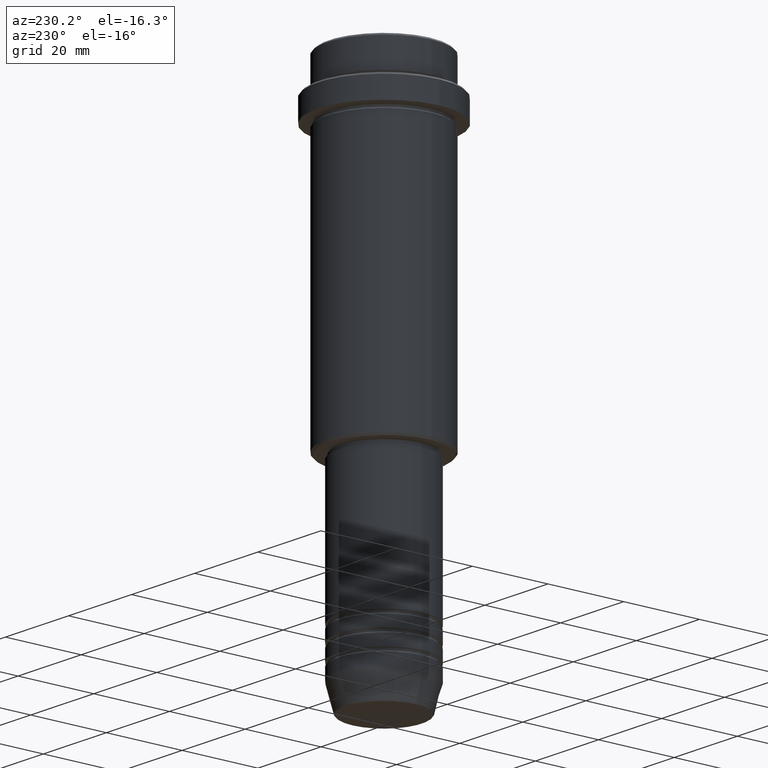
[diagram: clean part render]
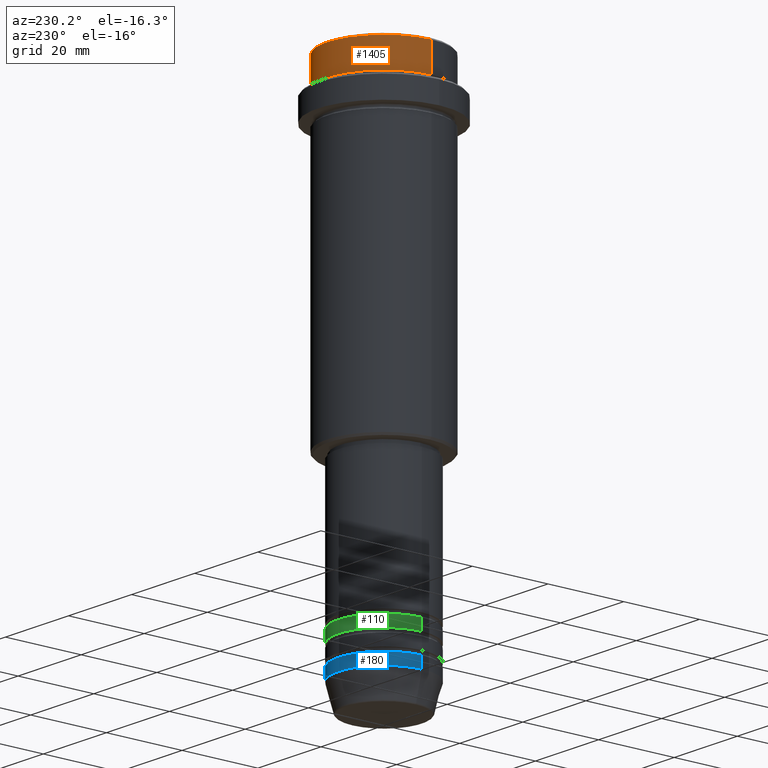
[diagram: same view with three faces highlighted in distinct colors, each labeled with its STEP entity id]
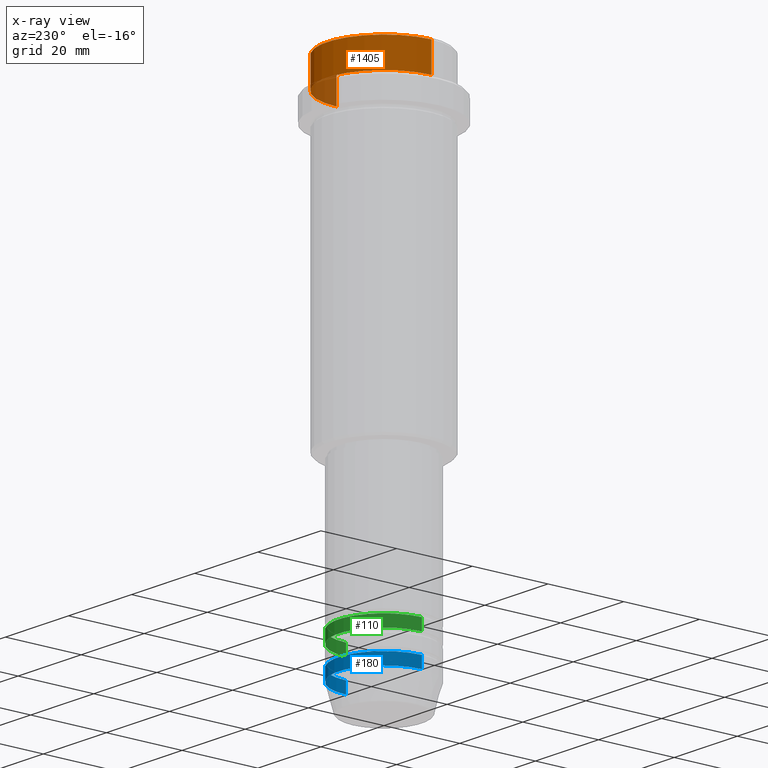
[diagram: x-ray of the same camera — body ghosted, the three highlighted faces saturated]
A machine part, auxiliary view with three faces highlighted in distinct colors.
The next image is the same camera in x-ray (body ghosted, the three faces saturated) — at least one of them is partly hidden behind the body in this view.
Their STEP definitions:

[orange] entity #1405 — the highlighted cylindrical surface (partial cylindrical patch) has radius 15 mm, axis along (-0, -0, 1).
#1 = EDGE_CURVE ( 'NONE', #485, #446, #190, .T. ) ;
#34 = EDGE_CURVE ( 'NONE', #1233, #395, #772, .T. ) ;
#158 = EDGE_CURVE ( 'NONE', #485, #395, #713, .T. ) ;
#190 = CIRCLE ( 'NONE', #879, 15.00000000000000000 ) ;
#212 = EDGE_LOOP ( 'NONE', ( #1144, #1073, #869, #626 ) ) ;
#223 = CARTESIAN_POINT ( 'NONE',  ( 15.00000000000000000, 0.000000000000000000, -0.4999999999999970024 ) ) ;
#239 = VECTOR ( 'NONE', #815, 1000.000000000000000 ) ;
#280 = DIRECTION ( 'NONE',  ( 1.000000000000000000, 0.000000000000000000, 0.000000000000000000 ) ) ;
#306 = VECTOR ( 'NONE', #764, 1000.000000000000000 ) ;
#395 = VERTEX_POINT ( 'NONE', #223 ) ;
#403 = CARTESIAN_POINT ( 'NONE',  ( 0.000000000000000000, 0.000000000000000000, 0.000000000000000000 ) ) ;
#446 = VERTEX_POINT ( 'NONE', #734 ) ;
#447 = CARTESIAN_POINT ( 'NONE',  ( -15.00000000000000000, 1.836970198721029589E-15, 0.000000000000000000 ) ) ;
#485 = VERTEX_POINT ( 'NONE', #1056 ) ;
#509 = DIRECTION ( 'NONE',  ( -0.000000000000000000, -0.000000000000000000, 1.000000000000000000 ) ) ;
#626 = ORIENTED_EDGE ( 'NONE', *, *, #158, .F. ) ;
#634 = AXIS2_PLACEMENT_3D ( 'NONE', #1375, #1266, #741 ) ;
#642 = AXIS2_PLACEMENT_3D ( 'NONE', #403, #509, #1146 ) ;
#713 = LINE ( 'NONE', #921, #239 ) ;
#734 = CARTESIAN_POINT ( 'NONE',  ( -15.00000000000000000, 1.836970198721029589E-15, -7.999999999999998224 ) ) ;
#741 = DIRECTION ( 'NONE',  ( 1.000000000000000000, 0.000000000000000000, 0.000000000000000000 ) ) ;
#764 = DIRECTION ( 'NONE',  ( -0.000000000000000000, -0.000000000000000000, 1.000000000000000000 ) ) ;
#772 = CIRCLE ( 'NONE', #634, 15.00000000000000000 ) ;
#815 = DIRECTION ( 'NONE',  ( -0.000000000000000000, -0.000000000000000000, 1.000000000000000000 ) ) ;
#816 = CARTESIAN_POINT ( 'NONE',  ( -15.00000000000000000, 1.836970198721029589E-15, -0.4999999999999970024 ) ) ;
#842 = CYLINDRICAL_SURFACE ( 'NONE', #642, 15.00000000000000000 ) ;
#869 = ORIENTED_EDGE ( 'NONE', *, *, #34, .T. ) ;
#879 = AXIS2_PLACEMENT_3D ( 'NONE', #1261, #1361, #280 ) ;
#921 = CARTESIAN_POINT ( 'NONE',  ( 15.00000000000000000, 0.000000000000000000, 0.000000000000000000 ) ) ;
#1056 = CARTESIAN_POINT ( 'NONE',  ( 15.00000000000000000, 0.000000000000000000, -7.999999999999998224 ) ) ;
#1073 = ORIENTED_EDGE ( 'NONE', *, *, #1084, .T. ) ;
#1084 = EDGE_CURVE ( 'NONE', #446, #1233, #1093, .T. ) ;
#1093 = LINE ( 'NONE', #447, #306 ) ;
#1144 = ORIENTED_EDGE ( 'NONE', *, *, #1, .T. ) ;
#1146 = DIRECTION ( 'NONE',  ( 1.000000000000000000, 0.000000000000000000, 0.000000000000000000 ) ) ;
#1153 = FACE_OUTER_BOUND ( 'NONE', #212, .T. ) ;
#1233 = VERTEX_POINT ( 'NONE', #816 ) ;
#1261 = CARTESIAN_POINT ( 'NONE',  ( 0.000000000000000000, 0.000000000000000000, -7.999999999999998224 ) ) ;
#1266 = DIRECTION ( 'NONE',  ( 0.000000000000000000, 0.000000000000000000, -1.000000000000000000 ) ) ;
#1361 = DIRECTION ( 'NONE',  ( -0.000000000000000000, -0.000000000000000000, 1.000000000000000000 ) ) ;
#1375 = CARTESIAN_POINT ( 'NONE',  ( 0.000000000000000000, 0.000000000000000000, -0.4999999999999970024 ) ) ;
#1405 = ADVANCED_FACE ( 'NONE', ( #1153 ), #842, .T. ) ;

[blue] entity #180 — the highlighted cylindrical surface (partial cylindrical patch) has radius 12 mm, axis along (-0, -0, 1).
#23 = EDGE_CURVE ( 'NONE', #362, #118, #927, .T. ) ;
#77 = CARTESIAN_POINT ( 'NONE',  ( -12.00000000000000000, 1.469576158976823947E-15, 0.000000000000000000 ) ) ;
#106 = EDGE_LOOP ( 'NONE', ( #1364, #316, #743, #1301 ) ) ;
#118 = VERTEX_POINT ( 'NONE', #1149 ) ;
#138 = EDGE_CURVE ( 'NONE', #118, #1167, #1057, .T. ) ;
#173 = VERTEX_POINT ( 'NONE', #1397 ) ;
#180 = ADVANCED_FACE ( 'NONE', ( #774 ), #213, .T. ) ;
#191 = EDGE_CURVE ( 'NONE', #173, #1167, #773, .T. ) ;
#213 = CYLINDRICAL_SURFACE ( 'NONE', #261, 12.00000000000000000 ) ;
#261 = AXIS2_PLACEMENT_3D ( 'NONE', #757, #659, #958 ) ;
#316 = ORIENTED_EDGE ( 'NONE', *, *, #138, .T. ) ;
#326 = DIRECTION ( 'NONE',  ( 1.000000000000000000, 0.000000000000000000, 0.000000000000000000 ) ) ;
#362 = VERTEX_POINT ( 'NONE', #579 ) ;
#387 = CARTESIAN_POINT ( 'NONE',  ( 0.000000000000000000, 0.000000000000000000, -133.0000000000000000 ) ) ;
#402 = AXIS2_PLACEMENT_3D ( 'NONE', #387, #1246, #1255 ) ;
#427 = VECTOR ( 'NONE', #516, 1000.000000000000000 ) ;
#441 = EDGE_CURVE ( 'NONE', #362, #173, #1367, .T. ) ;
#445 = CARTESIAN_POINT ( 'NONE',  ( 0.000000000000000000, 0.000000000000000000, -130.0000000000000000 ) ) ;
#516 = DIRECTION ( 'NONE',  ( -0.000000000000000000, -0.000000000000000000, 1.000000000000000000 ) ) ;
#541 = AXIS2_PLACEMENT_3D ( 'NONE', #445, #1171, #326 ) ;
#579 = CARTESIAN_POINT ( 'NONE',  ( 12.00000000000000000, 0.000000000000000000, -133.0000000000000000 ) ) ;
#659 = DIRECTION ( 'NONE',  ( -0.000000000000000000, -0.000000000000000000, 1.000000000000000000 ) ) ;
#719 = CARTESIAN_POINT ( 'NONE',  ( 12.00000000000000000, 0.000000000000000000, 0.000000000000000000 ) ) ;
#743 = ORIENTED_EDGE ( 'NONE', *, *, #191, .F. ) ;
#757 = CARTESIAN_POINT ( 'NONE',  ( 0.000000000000000000, 0.000000000000000000, 0.000000000000000000 ) ) ;
#773 = CIRCLE ( 'NONE', #541, 12.00000000000000000 ) ;
#774 = FACE_OUTER_BOUND ( 'NONE', #106, .T. ) ;
#927 = CIRCLE ( 'NONE', #402, 12.00000000000000000 ) ;
#958 = DIRECTION ( 'NONE',  ( 1.000000000000000000, 0.000000000000000000, 0.000000000000000000 ) ) ;
#1057 = LINE ( 'NONE', #77, #427 ) ;
#1149 = CARTESIAN_POINT ( 'NONE',  ( -12.00000000000000000, 1.469576158976823947E-15, -133.0000000000000000 ) ) ;
#1157 = VECTOR ( 'NONE', #1359, 1000.000000000000000 ) ;
#1167 = VERTEX_POINT ( 'NONE', #1302 ) ;
#1171 = DIRECTION ( 'NONE',  ( -0.000000000000000000, -0.000000000000000000, 1.000000000000000000 ) ) ;
#1246 = DIRECTION ( 'NONE',  ( -0.000000000000000000, -0.000000000000000000, 1.000000000000000000 ) ) ;
#1255 = DIRECTION ( 'NONE',  ( 1.000000000000000000, 0.000000000000000000, 0.000000000000000000 ) ) ;
#1301 = ORIENTED_EDGE ( 'NONE', *, *, #441, .F. ) ;
#1302 = CARTESIAN_POINT ( 'NONE',  ( -12.00000000000000000, 1.469576158976823947E-15, -130.0000000000000000 ) ) ;
#1359 = DIRECTION ( 'NONE',  ( -0.000000000000000000, -0.000000000000000000, 1.000000000000000000 ) ) ;
#1364 = ORIENTED_EDGE ( 'NONE', *, *, #23, .T. ) ;
#1367 = LINE ( 'NONE', #719, #1157 ) ;
#1397 = CARTESIAN_POINT ( 'NONE',  ( 12.00000000000000000, 0.000000000000000000, -130.0000000000000000 ) ) ;

[green] entity #110 — the highlighted cylindrical surface (partial cylindrical patch) has radius 12 mm, axis along (-0, -0, 1).
#45 = CARTESIAN_POINT ( 'NONE',  ( 12.00000000000000000, 0.000000000000000000, 0.000000000000000000 ) ) ;
#65 = AXIS2_PLACEMENT_3D ( 'NONE', #1079, #557, #539 ) ;
#110 = ADVANCED_FACE ( 'NONE', ( #837 ), #511, .T. ) ;
#140 = ORIENTED_EDGE ( 'NONE', *, *, #948, .F. ) ;
#177 = CARTESIAN_POINT ( 'NONE',  ( 0.000000000000000000, 0.000000000000000000, -121.9999999999999005 ) ) ;
#181 = DIRECTION ( 'NONE',  ( 1.000000000000000000, 0.000000000000000000, 0.000000000000000000 ) ) ;
#295 = DIRECTION ( 'NONE',  ( -0.000000000000000000, -0.000000000000000000, 1.000000000000000000 ) ) ;
#331 = CIRCLE ( 'NONE', #358, 12.00000000000000000 ) ;
#358 = AXIS2_PLACEMENT_3D ( 'NONE', #177, #1271, #1281 ) ;
#469 = CARTESIAN_POINT ( 'NONE',  ( -12.00000000000000000, 1.469576158976823947E-15, -124.9999999999999005 ) ) ;
#492 = DIRECTION ( 'NONE',  ( -0.000000000000000000, -0.000000000000000000, 1.000000000000000000 ) ) ;
#511 = CYLINDRICAL_SURFACE ( 'NONE', #859, 12.00000000000000000 ) ;
#513 = CARTESIAN_POINT ( 'NONE',  ( 12.00000000000000000, 0.000000000000000000, -124.9999999999999005 ) ) ;
#539 = DIRECTION ( 'NONE',  ( 1.000000000000000000, 0.000000000000000000, 0.000000000000000000 ) ) ;
#557 = DIRECTION ( 'NONE',  ( -0.000000000000000000, -0.000000000000000000, 1.000000000000000000 ) ) ;
#611 = DIRECTION ( 'NONE',  ( -0.000000000000000000, -0.000000000000000000, 1.000000000000000000 ) ) ;
#616 = VECTOR ( 'NONE', #492, 1000.000000000000000 ) ;
#678 = EDGE_LOOP ( 'NONE', ( #966, #981, #140, #1122 ) ) ;
#768 = VERTEX_POINT ( 'NONE', #1234 ) ;
#783 = VERTEX_POINT ( 'NONE', #469 ) ;
#785 = EDGE_CURVE ( 'NONE', #911, #787, #1328, .T. ) ;
#787 = VERTEX_POINT ( 'NONE', #1145 ) ;
#825 = CARTESIAN_POINT ( 'NONE',  ( 0.000000000000000000, 0.000000000000000000, 0.000000000000000000 ) ) ;
#837 = FACE_OUTER_BOUND ( 'NONE', #678, .T. ) ;
#848 = CARTESIAN_POINT ( 'NONE',  ( -12.00000000000000000, 1.469576158976823947E-15, 0.000000000000000000 ) ) ;
#859 = AXIS2_PLACEMENT_3D ( 'NONE', #825, #611, #181 ) ;
#911 = VERTEX_POINT ( 'NONE', #513 ) ;
#948 = EDGE_CURVE ( 'NONE', #787, #768, #331, .T. ) ;
#966 = ORIENTED_EDGE ( 'NONE', *, *, #1121, .T. ) ;
#977 = EDGE_CURVE ( 'NONE', #783, #768, #1174, .T. ) ;
#981 = ORIENTED_EDGE ( 'NONE', *, *, #977, .T. ) ;
#1079 = CARTESIAN_POINT ( 'NONE',  ( 0.000000000000000000, 0.000000000000000000, -124.9999999999999005 ) ) ;
#1121 = EDGE_CURVE ( 'NONE', #911, #783, #1249, .T. ) ;
#1122 = ORIENTED_EDGE ( 'NONE', *, *, #785, .F. ) ;
#1145 = CARTESIAN_POINT ( 'NONE',  ( 12.00000000000000000, 0.000000000000000000, -121.9999999999999005 ) ) ;
#1174 = LINE ( 'NONE', #848, #1245 ) ;
#1234 = CARTESIAN_POINT ( 'NONE',  ( -12.00000000000000000, 1.469576158976823947E-15, -121.9999999999999005 ) ) ;
#1245 = VECTOR ( 'NONE', #295, 1000.000000000000000 ) ;
#1249 = CIRCLE ( 'NONE', #65, 12.00000000000000000 ) ;
#1271 = DIRECTION ( 'NONE',  ( -0.000000000000000000, -0.000000000000000000, 1.000000000000000000 ) ) ;
#1281 = DIRECTION ( 'NONE',  ( 1.000000000000000000, 0.000000000000000000, 0.000000000000000000 ) ) ;
#1328 = LINE ( 'NONE', #45, #616 ) ;